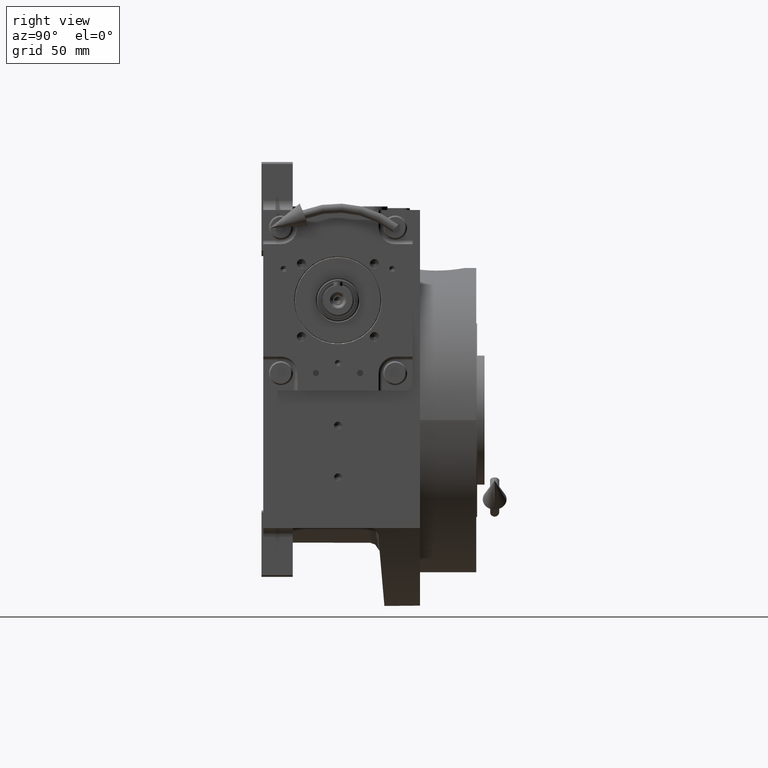
[diagram: clean part render]
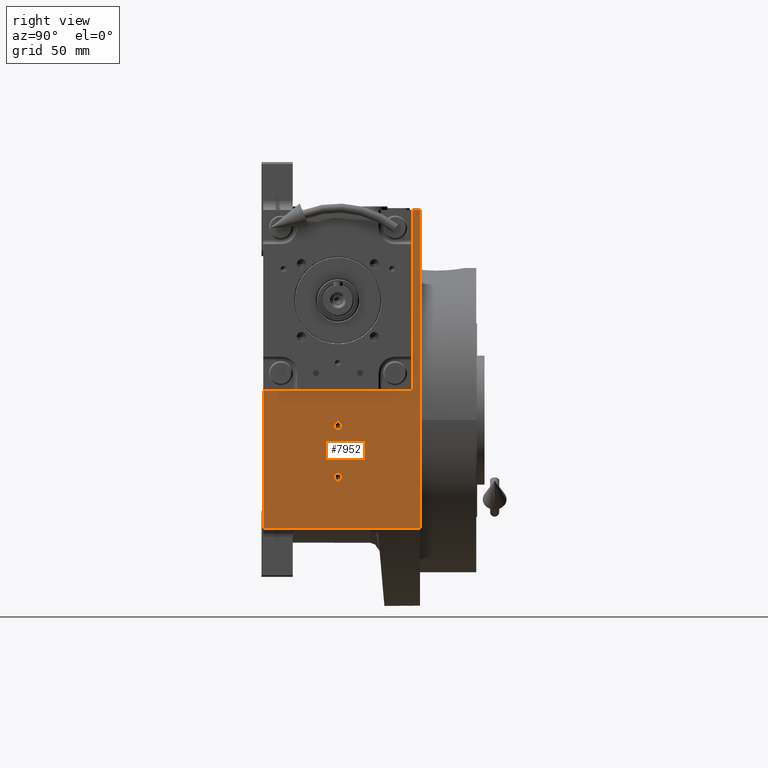
[diagram: same view with one face highlighted and labeled with its STEP entity id]
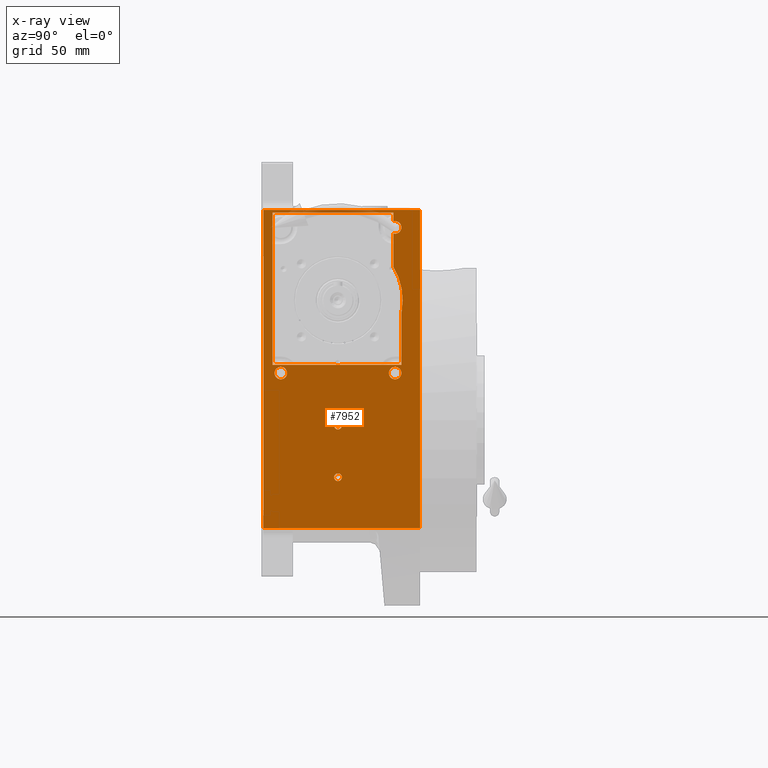
[diagram: x-ray of the same camera — body ghosted, the highlighted face saturated]
A machine part, right view. The second image highlights one B-rep face of the part: STEP entity #7952.
The next image is the same camera in x-ray: the body ghosted, the highlighted face saturated — about 1% of this face is hidden behind the body in this view.
In plain terms, the highlighted planar face has unit normal (1, 0, -0).
Its self-contained STEP definition (entity closure, byte-faithful):
#223 = CARTESIAN_POINT ( 'NONE',  ( 82.50000000000000000, 33.81974078154515695, 74.46453734952115155 ) ) ;
#349 = EDGE_CURVE ( 'NONE', #39101, #50903, #2196, .T. ) ;
#451 = VECTOR ( 'NONE', #51241, 1000.000000000000000 ) ;
#545 = CIRCLE ( 'NONE', #49064, 2.100000000000000089 ) ;
#550 = CARTESIAN_POINT ( 'NONE',  ( 82.50000000000001421, 30.82805572436245711, 81.84190272524516274 ) ) ;
#654 = B_SPLINE_CURVE_WITH_KNOTS ( 'NONE', 3,
 ( #19097, #58247, #39132, #19731 ),
 .UNSPECIFIED., .F., .F.,
 ( 4, 4 ),
 ( 0.4769929901098248770, 0.5000001611269361268 ),
 .UNSPECIFIED. ) ;
#1532 = VERTEX_POINT ( 'NONE', #7674 ) ;
#1597 = CARTESIAN_POINT ( 'NONE',  ( 82.50000025238179546, 16.91834884610074852, -58.49999999999619860 ) ) ;
#1786 = CARTESIAN_POINT ( 'NONE',  ( 82.50000000000000000, 29.99999999999985079, 112.4999999999999005 ) ) ;
#2168 = ORIENTED_EDGE ( 'NONE', *, *, #42943, .F. ) ;
#2196 = LINE ( 'NONE', #56786, #11076 ) ;
#2205 = DIRECTION ( 'NONE',  ( 0.000000000000000000, 1.000000000000000000, 0.000000000000000000 ) ) ;
#2494 = AXIS2_PLACEMENT_3D ( 'NONE', #43291, #57528, #63021 ) ;
#2920 = AXIS2_PLACEMENT_3D ( 'NONE', #21254, #37375, #22513 ) ;
#3673 = ORIENTED_EDGE ( 'NONE', *, *, #6486, .F. ) ;
#3834 = ORIENTED_EDGE ( 'NONE', *, *, #37333, .T. ) ;
#4205 = VERTEX_POINT ( 'NONE', #46553 ) ;
#4969 = VERTEX_POINT ( 'NONE', #45009 ) ;
#5706 = FACE_OUTER_BOUND ( 'NONE', #14596, .T. ) ;
#6036 = ORIENTED_EDGE ( 'NONE', *, *, #41169, .T. ) ;
#6316 = FACE_BOUND ( 'NONE', #9480, .T. ) ;
#6486 = EDGE_CURVE ( 'NONE', #59619, #8327, #26541, .T. ) ;
#6843 = CARTESIAN_POINT ( 'NONE',  ( 82.50000000000000000, 2.100000000000000089, -31.00000000000000000 ) ) ;
#6964 = DIRECTION ( 'NONE',  ( -1.647635329298784785E-16, 0.000000000000000000, -1.000000000000000000 ) ) ;
#7027 = CARTESIAN_POINT ( 'NONE',  ( 82.50000000000000000, -40.50000000000000000, -58.50000000000000000 ) ) ;
#7286 = CARTESIAN_POINT ( 'NONE',  ( 82.50000000000000000, 34.49999999999999289, 114.0000000000000000 ) ) ;
#7421 = AXIS2_PLACEMENT_3D ( 'NONE', #49929, #49278, #30510 ) ;
#7627 = ORIENTED_EDGE ( 'NONE', *, *, #13138, .T. ) ;
#7674 = CARTESIAN_POINT ( 'NONE',  ( 82.50000000000000000, 29.99999999995431565, 101.2503846381596730 ) ) ;
#7716 = AXIS2_PLACEMENT_3D ( 'NONE', #30725, #49828, #40119 ) ;
#7952 = ADVANCED_FACE ( 'NONE', ( #26029, #50921, #50588, #6316, #5706, #30546 ), #11813, .T. ) ;
#8327 = VERTEX_POINT ( 'NONE', #31668 ) ;
#9136 = ORIENTED_EDGE ( 'NONE', *, *, #24538, .F. ) ;
#9480 = EDGE_LOOP ( 'NONE', ( #38031, #18912 ) ) ;
#9586 = VERTEX_POINT ( 'NONE', #37774 ) ;
#9729 = ORIENTED_EDGE ( 'NONE', *, *, #36063, .T. ) ;
#10261 = CARTESIAN_POINT ( 'NONE',  ( 82.50000000000000000, 30.00000000000593303, 113.9999999997145892 ) ) ;
#10501 = ORIENTED_EDGE ( 'NONE', *, *, #38036, .T. ) ;
#10542 = CIRCLE ( 'NONE', #50776, 3.400000000000000355 ) ;
#10865 = EDGE_LOOP ( 'NONE', ( #39494, #3673 ) ) ;
#11076 = VECTOR ( 'NONE', #50660, 1000.000000000000000 ) ;
#11813 = PLANE ( 'NONE',  #23533 ) ;
#11840 = ORIENTED_EDGE ( 'NONE', *, *, #60786, .T. ) ;
#11956 = VECTOR ( 'NONE', #46591, 1000.000000000000000 ) ;
#11971 = CARTESIAN_POINT ( 'NONE',  ( 82.50000000000000000, 16.91835670641390266, -58.49999999999130296 ) ) ;
#12104 = ORIENTED_EDGE ( 'NONE', *, *, #31711, .T. ) ;
#12509 = LINE ( 'NONE', #7027, #38481 ) ;
#12594 = VECTOR ( 'NONE', #44128, 1000.000000000000000 ) ;
#12634 = DIRECTION ( 'NONE',  ( 0.000000000000000000, 1.000000000000000000, 0.000000000000000000 ) ) ;
#12961 = EDGE_CURVE ( 'NONE', #30381, #17399, #41741, .T. ) ;
#12971 = VERTEX_POINT ( 'NONE', #47220 ) ;
#13029 = DIRECTION ( 'NONE',  ( 0.000000000000000000, -1.000000000000000000, 0.000000000000000000 ) ) ;
#13138 = EDGE_CURVE ( 'NONE', #22714, #4205, #19397, .T. ) ;
#13212 = ORIENTED_EDGE ( 'NONE', *, *, #57116, .T. ) ;
#13265 = VERTEX_POINT ( 'NONE', #50093 ) ;
#13866 = CARTESIAN_POINT ( 'NONE',  ( 82.49999999999998579, 34.49999999999999289, 30.00000000000000000 ) ) ;
#14596 = EDGE_LOOP ( 'NONE', ( #20415, #2168, #44873, #11840, #3834 ) ) ;
#14885 = CARTESIAN_POINT ( 'NONE',  ( 82.50000000000000000, 34.49999998686116243, 58.58312853369196205 ) ) ;
#15152 = EDGE_CURVE ( 'NONE', #29018, #12971, #53481, .T. ) ;
#15264 = CARTESIAN_POINT ( 'NONE',  ( 82.50000000000001421, 2.414562605747844383E-09, 29.90816376169637891 ) ) ;
#15347 = ORIENTED_EDGE ( 'NONE', *, *, #58444, .T. ) ;
#15714 = CARTESIAN_POINT ( 'NONE',  ( 82.50000000000001421, 32.80572029892041996, 77.48516808457488025 ) ) ;
#15751 = EDGE_CURVE ( 'NONE', #17399, #55267, #654, .T. ) ;
#15914 = CARTESIAN_POINT ( 'NONE',  ( 82.49999999999998579, -1.693757624165966202, 29.93853691575077747 ) ) ;
#16031 = CARTESIAN_POINT ( 'NONE',  ( 82.50001592702780329, 35.09186693526755363, 65.00000042374568920 ) ) ;
#16519 = CARTESIAN_POINT ( 'NONE',  ( 82.50000000000000000, -40.50000000000000000, 114.0000000000000000 ) ) ;
#16654 = DIRECTION ( 'NONE',  ( -1.647635329298784785E-16, 0.000000000000000000, -1.000000000000000000 ) ) ;
#17183 = CARTESIAN_POINT ( 'NONE',  ( 82.49999999999998579, -40.49999999999999289, 29.99999999999998579 ) ) ;
#17399 = VERTEX_POINT ( 'NONE', #60140 ) ;
#17558 = EDGE_LOOP ( 'NONE', ( #51661, #49151 ) ) ;
#17612 = CARTESIAN_POINT ( 'NONE',  ( 82.50000000000000000, -40.50000000000000000, 112.4999999999999005 ) ) ;
#18162 = CARTESIAN_POINT ( 'NONE',  ( 82.50000000000000000, 44.50000000000000000, -58.50000000000000000 ) ) ;
#18912 = ORIENTED_EDGE ( 'NONE', *, *, #33085, .F. ) ;
#19097 = CARTESIAN_POINT ( 'NONE',  ( 82.50000000000000000, 2.536110083989804753, 29.99974484571772138 ) ) ;
#19397 = B_SPLINE_CURVE_WITH_KNOTS ( 'NONE', 3,
 ( #40394, #20676, #44608, #14885 ),
 .UNSPECIFIED., .F., .F.,
 ( 4, 4 ),
 ( 0.000000000000000000, 0.05853918765828202558 ),
 .UNSPECIFIED. ) ;
#19731 = CARTESIAN_POINT ( 'NONE',  ( 82.50000000000001421, 2.414562605747844383E-09, 29.90816376169637891 ) ) ;
#19919 = CARTESIAN_POINT ( 'NONE',  ( 82.49999999999997158, 34.95339362933337668, 68.60173905830357910 ) ) ;
#20069 = VECTOR ( 'NONE', #39634, 1000.000000000000000 ) ;
#20324 = VERTEX_POINT ( 'NONE', #18162 ) ;
#20415 = ORIENTED_EDGE ( 'NONE', *, *, #33368, .F. ) ;
#20676 = CARTESIAN_POINT ( 'NONE',  ( 82.49999999999998579, 35.08908208338716861, 62.82792700497097371 ) ) ;
#21254 = CARTESIAN_POINT ( 'NONE',  ( 82.50000000000000000, 2.220446049250315053E-16, -31.00000000000000000 ) ) ;
#22187 = CARTESIAN_POINT ( 'NONE',  ( 82.50001592702780329, 35.09186693526755363, 65.00000042374568920 ) ) ;
#22513 = DIRECTION ( 'NONE',  ( 0.000000000000000000, 1.000000000000000000, 0.000000000000000000 ) ) ;
#22714 = VERTEX_POINT ( 'NONE', #22187 ) ;
#22863 = CIRCLE ( 'NONE', #41403, 3.400000000000000355 ) ;
#23298 = DIRECTION ( 'NONE',  ( -1.647635329298784785E-16, 0.000000000000000000, -1.000000000000000000 ) ) ;
#23321 = CARTESIAN_POINT ( 'NONE',  ( 82.50000000000000000, 34.39999999999999858, 104.5000000000000000 ) ) ;
#23533 = AXIS2_PLACEMENT_3D ( 'NONE', #50271, #30235, #16654 ) ;
#24089 = VERTEX_POINT ( 'NONE', #33465 ) ;
#24412 = CARTESIAN_POINT ( 'NONE',  ( 82.50000000000000000, 30.00000000000593303, 113.9999999997145892 ) ) ;
#24538 = EDGE_CURVE ( 'NONE', #1532, #48304, #10542, .T. ) ;
#25095 = LINE ( 'NONE', #29611, #20069 ) ;
#25314 = DIRECTION ( 'NONE',  ( 1.000000000000000000, 0.000000000000000000, 0.000000000000000000 ) ) ;
#25376 = EDGE_LOOP ( 'NONE', ( #29108, #35453 ) ) ;
#25687 = VERTEX_POINT ( 'NONE', #44772 ) ;
#25823 = DIRECTION ( 'NONE',  ( 1.000000000000000000, 0.000000000000000000, 0.000000000000000000 ) ) ;
#26029 = FACE_BOUND ( 'NONE', #17558, .T. ) ;
#26409 = DIRECTION ( 'NONE',  ( 1.000000000000000000, 0.000000000000000000, 0.000000000000000000 ) ) ;
#26445 = DIRECTION ( 'NONE',  ( 0.000000000000000000, 1.000000000000000000, 8.260587980841937794E-16 ) ) ;
#26541 = CIRCLE ( 'NONE', #34792, 2.100000000000000089 ) ;
#26754 = DIRECTION ( 'NONE',  ( 1.000000000000000000, 0.000000000000000000, 0.000000000000000000 ) ) ;
#26946 = CARTESIAN_POINT ( 'NONE',  ( 82.50000000000000000, 31.00000000000000000, 104.5000000000000000 ) ) ;
#27185 = CARTESIAN_POINT ( 'NONE',  ( 82.50000000000000000, -40.50000000000000000, 114.0000000000000000 ) ) ;
#27227 = VECTOR ( 'NONE', #12634, 1000.000000000000000 ) ;
#27426 = VERTEX_POINT ( 'NONE', #1597 ) ;
#27637 = EDGE_CURVE ( 'NONE', #8327, #59619, #545, .T. ) ;
#27709 = CARTESIAN_POINT ( 'NONE',  ( 82.50000000000000000, 0.000000000000000000, -3.000000000000000000 ) ) ;
#28077 = CIRCLE ( 'NONE', #52822, 3.400000000000000355 ) ;
#28329 = CIRCLE ( 'NONE', #7716, 3.400000000000000355 ) ;
#28470 = CARTESIAN_POINT ( 'NONE',  ( 82.50000000000000000, 44.50000000000000000, 114.0000000000000000 ) ) ;
#29018 = VERTEX_POINT ( 'NONE', #6843 ) ;
#29108 = ORIENTED_EDGE ( 'NONE', *, *, #39004, .F. ) ;
#29611 = CARTESIAN_POINT ( 'NONE',  ( 82.50000000000000000, -40.50000000000000000, 114.0000000000000000 ) ) ;
#30235 = DIRECTION ( 'NONE',  ( 1.000000000000000000, 0.000000000000000000, -1.647635329298784785E-16 ) ) ;
#30244 = CARTESIAN_POINT ( 'NONE',  ( 82.50000000000000000, 32.51283170918762977, 78.22893766805258053 ) ) ;
#30381 = VERTEX_POINT ( 'NONE', #53730 ) ;
#30510 = DIRECTION ( 'NONE',  ( 0.000000000000000000, -1.000000000000000000, 0.000000000000000000 ) ) ;
#30546 = FACE_BOUND ( 'NONE', #50249, .T. ) ;
#30555 = CARTESIAN_POINT ( 'NONE',  ( 82.50000000000001421, 33.33865609199173718, 75.98322085332500819 ) ) ;
#30663 = VERTEX_POINT ( 'NONE', #16519 ) ;
#30725 = CARTESIAN_POINT ( 'NONE',  ( 82.50000000000000000, -31.00000000000000000, 25.50000000000000000 ) ) ;
#30919 = DIRECTION ( 'NONE',  ( 0.000000000000000000, 1.000000000000000000, 4.081702296416015997E-15 ) ) ;
#31515 = LINE ( 'NONE', #7286, #54993 ) ;
#31629 = B_SPLINE_CURVE_WITH_KNOTS ( 'NONE', 3,
 ( #15264, #50805, #15914, #35613 ),
 .UNSPECIFIED., .F., .F.,
 ( 4, 4 ),
 ( 0.5000001611269361268, 0.5230119329669968842 ),
 .UNSPECIFIED. ) ;
#31662 = DIRECTION ( 'NONE',  ( 0.000000000000000000, 1.000000000000000000, -3.142895179957984790E-13 ) ) ;
#31668 = CARTESIAN_POINT ( 'NONE',  ( 82.50000000000000000, 2.100000000000000089, -3.000000000000000000 ) ) ;
#31711 = EDGE_CURVE ( 'NONE', #55267, #53502, #31629, .T. ) ;
#31922 = DIRECTION ( 'NONE',  ( 0.000000000000000000, 1.000000000000000000, -2.040851148208007998E-15 ) ) ;
#32732 = DIRECTION ( 'NONE',  ( 1.000000000000000000, 0.000000000000000000, 0.000000000000000000 ) ) ;
#33085 = EDGE_CURVE ( 'NONE', #55805, #13265, #53895, .T. ) ;
#33144 = EDGE_CURVE ( 'NONE', #13265, #55805, #28077, .T. ) ;
#33368 = EDGE_CURVE ( 'NONE', #42120, #20324, #38797, .T. ) ;
#33465 = CARTESIAN_POINT ( 'NONE',  ( 82.49999999999998579, 30.00000000960658042, 83.20547276137477866 ) ) ;
#33646 = CARTESIAN_POINT ( 'NONE',  ( 82.50000000000001421, 2.414562605747844383E-09, 29.90816376169637891 ) ) ;
#34370 = CARTESIAN_POINT ( 'NONE',  ( 82.50000000000000000, 0.000000000000000000, -3.000000000000000000 ) ) ;
#34437 = CIRCLE ( 'NONE', #2494, 2.100000000000000089 ) ;
#34456 = CARTESIAN_POINT ( 'NONE',  ( 82.50000000000000000, -40.50000000000000000, -58.50000000000000000 ) ) ;
#34469 = CARTESIAN_POINT ( 'NONE',  ( 82.49999999999997158, 34.51518828127864680, 71.34633111491422142 ) ) ;
#34792 = AXIS2_PLACEMENT_3D ( 'NONE', #34370, #25314, #40491 ) ;
#35134 = LINE ( 'NONE', #10261, #57846 ) ;
#35453 = ORIENTED_EDGE ( 'NONE', *, *, #62858, .F. ) ;
#35613 = CARTESIAN_POINT ( 'NONE',  ( 82.50000000000000000, -2.536110689832524745, 29.99973653616786606 ) ) ;
#35912 = LINE ( 'NONE', #27185, #27227 ) ;
#36063 = EDGE_CURVE ( 'NONE', #53502, #39101, #63324, .T. ) ;
#36078 = DIRECTION ( 'NONE',  ( -1.647635329298784785E-16, -4.048429820936533247E-12, -1.000000000000000000 ) ) ;
#36147 = CARTESIAN_POINT ( 'NONE',  ( 82.50000000000000000, -31.00000000000000000, 25.50000000000000000 ) ) ;
#36741 = CARTESIAN_POINT ( 'NONE',  ( 82.50000000000000000, 31.00000000000000000, 104.5000000000000000 ) ) ;
#37333 = EDGE_CURVE ( 'NONE', #27426, #20324, #56267, .T. ) ;
#37375 = DIRECTION ( 'NONE',  ( 1.000000000000000000, 0.000000000000000000, 0.000000000000000000 ) ) ;
#37774 = CARTESIAN_POINT ( 'NONE',  ( 82.50000000000000000, 29.99999999998061995, 107.7496153618484129 ) ) ;
#38031 = ORIENTED_EDGE ( 'NONE', *, *, #33144, .F. ) ;
#38036 = EDGE_CURVE ( 'NONE', #24089, #22714, #39044, .T. ) ;
#38481 = VECTOR ( 'NONE', #2205, 1000.000000000000000 ) ;
#38640 = LINE ( 'NONE', #24412, #12594 ) ;
#38797 = LINE ( 'NONE', #43660, #39493 ) ;
#38803 = CARTESIAN_POINT ( 'NONE',  ( 82.50000000000000000, -2.536110689832524745, 29.99973653616786606 ) ) ;
#39004 = EDGE_CURVE ( 'NONE', #4969, #25687, #54874, .T. ) ;
#39044 = B_SPLINE_CURVE_WITH_KNOTS ( 'NONE', 3,
 ( #39638, #550, #60310, #30244, #15714, #30555, #223, #39953, #50282, #34469, #59673, #19919, #39316, #16031 ),
 .UNSPECIFIED., .F., .F.,
 ( 4, 2, 2, 1, 2, 2, 1, 4 ),
 ( 0.8263553266775865991, 0.8697664950081898105, 0.8914720791734912497, 0.9131776633387927999, 0.9348832475040943502, 0.9457360395867453473, 0.9565888316693962334, 1.000000000000000000 ),
 .UNSPECIFIED. ) ;
#39101 = VERTEX_POINT ( 'NONE', #42914 ) ;
#39132 = CARTESIAN_POINT ( 'NONE',  ( 82.49999999999998579, 0.8482114151010448078, 29.90810332843309993 ) ) ;
#39316 = CARTESIAN_POINT ( 'NONE',  ( 82.49999999999997158, 35.08975786824625231, 66.61097725807486825 ) ) ;
#39493 = VECTOR ( 'NONE', #23298, 1000.000000000000000 ) ;
#39494 = ORIENTED_EDGE ( 'NONE', *, *, #27637, .F. ) ;
#39634 = DIRECTION ( 'NONE',  ( -1.647635329298784785E-16, 0.000000000000000000, -1.000000000000000000 ) ) ;
#39638 = CARTESIAN_POINT ( 'NONE',  ( 82.49999999999998579, 30.00000000960658042, 83.20547276137477866 ) ) ;
#39953 = CARTESIAN_POINT ( 'NONE',  ( 82.50000000000001421, 34.19712326406279601, 72.91238130060928313 ) ) ;
#40119 = DIRECTION ( 'NONE',  ( 0.000000000000000000, -1.000000000000000000, 2.040851148208007998E-15 ) ) ;
#40188 = ORIENTED_EDGE ( 'NONE', *, *, #52593, .T. ) ;
#40394 = CARTESIAN_POINT ( 'NONE',  ( 82.50001592702780329, 35.09186693526755363, 65.00000042374568920 ) ) ;
#40491 = DIRECTION ( 'NONE',  ( 0.000000000000000000, -1.000000000000000000, -8.260587980841937794E-16 ) ) ;
#41169 = EDGE_CURVE ( 'NONE', #54466, #9586, #38640, .T. ) ;
#41403 = AXIS2_PLACEMENT_3D ( 'NONE', #36741, #26409, #30919 ) ;
#41431 = AXIS2_PLACEMENT_3D ( 'NONE', #36147, #25823, #31922 ) ;
#41741 = LINE ( 'NONE', #17183, #11956 ) ;
#42120 = VERTEX_POINT ( 'NONE', #28470 ) ;
#42914 = CARTESIAN_POINT ( 'NONE',  ( 82.49999999999998579, -35.50000000000001421, 29.99999999999999289 ) ) ;
#42943 = EDGE_CURVE ( 'NONE', #30663, #42120, #35912, .T. ) ;
#43291 = CARTESIAN_POINT ( 'NONE',  ( 82.50000000000000000, 0.000000000000000000, -31.00000000000000000 ) ) ;
#43660 = CARTESIAN_POINT ( 'NONE',  ( 82.50000000000000000, 44.50000000000000000, 114.0000000000000000 ) ) ;
#43958 = CARTESIAN_POINT ( 'NONE',  ( 82.50000000000000000, -2.100000000000000089, -3.000000000000000000 ) ) ;
#44128 = DIRECTION ( 'NONE',  ( -1.647635329298784785E-16, -4.048429820936533247E-12, -1.000000000000000000 ) ) ;
#44207 = EDGE_CURVE ( 'NONE', #30663, #59778, #25095, .T. ) ;
#44608 = CARTESIAN_POINT ( 'NONE',  ( 82.49999999999998579, 34.89175272516990844, 60.68897464567918831 ) ) ;
#44772 = CARTESIAN_POINT ( 'NONE',  ( 82.50000000000000000, -34.39999999999999858, 25.50000000000000000 ) ) ;
#44873 = ORIENTED_EDGE ( 'NONE', *, *, #44207, .T. ) ;
#45009 = CARTESIAN_POINT ( 'NONE',  ( 82.50000000000000000, -27.59999999999999787, 25.50000000000000000 ) ) ;
#45075 = CARTESIAN_POINT ( 'NONE',  ( 82.50000000000000000, 31.00000000000000000, 25.50000000000000000 ) ) ;
#46553 = CARTESIAN_POINT ( 'NONE',  ( 82.50000000000000000, 34.49999998686116243, 58.58312853369196205 ) ) ;
#46591 = DIRECTION ( 'NONE',  ( -1.633252391761930827E-32, -1.000000000000000000, -9.912705577010326782E-17 ) ) ;
#47220 = CARTESIAN_POINT ( 'NONE',  ( 82.50000000000000000, -2.100000000000000089, -31.00000000000000000 ) ) ;
#48304 = VERTEX_POINT ( 'NONE', #23321 ) ;
#49064 = AXIS2_PLACEMENT_3D ( 'NONE', #27709, #26754, #26445 ) ;
#49151 = ORIENTED_EDGE ( 'NONE', *, *, #58171, .F. ) ;
#49278 = DIRECTION ( 'NONE',  ( 1.000000000000000000, 0.000000000000000000, 0.000000000000000000 ) ) ;
#49828 = DIRECTION ( 'NONE',  ( 1.000000000000000000, 0.000000000000000000, 0.000000000000000000 ) ) ;
#49929 = CARTESIAN_POINT ( 'NONE',  ( 82.50000000000000000, 31.00000000000000000, 25.50000000000000000 ) ) ;
#50093 = CARTESIAN_POINT ( 'NONE',  ( 82.50000000000000000, 34.39999999999999858, 25.50000000000000000 ) ) ;
#50249 = EDGE_LOOP ( 'NONE', ( #9136, #40188, #10501, #7627, #13212, #58028, #60114, #12104, #9729, #60047, #15347, #6036, #62566 ) ) ;
#50271 = CARTESIAN_POINT ( 'NONE',  ( 82.50000000000000000, -40.50000000000000000, 114.0000000000000000 ) ) ;
#50282 = CARTESIAN_POINT ( 'NONE',  ( 82.49999999999998579, 34.44127179831260577, 71.73571205950983654 ) ) ;
#50588 = FACE_BOUND ( 'NONE', #25376, .T. ) ;
#50660 = DIRECTION ( 'NONE',  ( 1.647635329298784785E-16, 0.000000000000000000, 1.000000000000000000 ) ) ;
#50776 = AXIS2_PLACEMENT_3D ( 'NONE', #26946, #32732, #13029 ) ;
#50805 = CARTESIAN_POINT ( 'NONE',  ( 82.49999999999998579, -0.8483810300191864107, 29.90807573436788758 ) ) ;
#50903 = VERTEX_POINT ( 'NONE', #51888 ) ;
#50921 = FACE_BOUND ( 'NONE', #10865, .T. ) ;
#50939 = LINE ( 'NONE', #17612, #451 ) ;
#51220 = CARTESIAN_POINT ( 'NONE',  ( 82.50000000000000000, 27.59999999999999787, 25.50000000000000000 ) ) ;
#51241 = DIRECTION ( 'NONE',  ( 0.000000000000000000, 1.000000000000000000, 0.000000000000000000 ) ) ;
#51661 = ORIENTED_EDGE ( 'NONE', *, *, #15152, .F. ) ;
#51888 = CARTESIAN_POINT ( 'NONE',  ( 82.49999999999998579, -35.50000000000001421, 112.4999999999999005 ) ) ;
#52384 = DIRECTION ( 'NONE',  ( 0.000000000000000000, 1.000000000000000000, 0.000000000000000000 ) ) ;
#52593 = EDGE_CURVE ( 'NONE', #1532, #24089, #35134, .T. ) ;
#52636 = DIRECTION ( 'NONE',  ( 0.000000000000000000, -1.000000000000000000, -9.912705577010326782E-17 ) ) ;
#52822 = AXIS2_PLACEMENT_3D ( 'NONE', #45075, #62416, #52384 ) ;
#53481 = CIRCLE ( 'NONE', #2920, 2.100000000000000089 ) ;
#53502 = VERTEX_POINT ( 'NONE', #38803 ) ;
#53730 = CARTESIAN_POINT ( 'NONE',  ( 82.49999999999998579, 34.49999999999999289, 30.00000000000000000 ) ) ;
#53861 = VECTOR ( 'NONE', #31662, 1000.000000000000000 ) ;
#53895 = CIRCLE ( 'NONE', #7421, 3.400000000000000355 ) ;
#54466 = VERTEX_POINT ( 'NONE', #1786 ) ;
#54727 = VECTOR ( 'NONE', #52636, 1000.000000000000000 ) ;
#54874 = CIRCLE ( 'NONE', #41431, 3.400000000000000355 ) ;
#54993 = VECTOR ( 'NONE', #6964, 1000.000000000000000 ) ;
#55267 = VERTEX_POINT ( 'NONE', #33646 ) ;
#55359 = EDGE_CURVE ( 'NONE', #48304, #9586, #22863, .T. ) ;
#55805 = VERTEX_POINT ( 'NONE', #51220 ) ;
#56267 = LINE ( 'NONE', #11971, #53861 ) ;
#56786 = CARTESIAN_POINT ( 'NONE',  ( 82.50000000000000000, -35.50000000000001421, 114.0000000000000000 ) ) ;
#57116 = EDGE_CURVE ( 'NONE', #4205, #30381, #31515, .T. ) ;
#57528 = DIRECTION ( 'NONE',  ( 1.000000000000000000, 0.000000000000000000, 0.000000000000000000 ) ) ;
#57846 = VECTOR ( 'NONE', #36078, 1000.000000000000000 ) ;
#58028 = ORIENTED_EDGE ( 'NONE', *, *, #12961, .T. ) ;
#58171 = EDGE_CURVE ( 'NONE', #12971, #29018, #34437, .T. ) ;
#58247 = CARTESIAN_POINT ( 'NONE',  ( 82.49999999999998579, 1.693853510454309763, 29.93857005420085216 ) ) ;
#58444 = EDGE_CURVE ( 'NONE', #50903, #54466, #50939, .T. ) ;
#59619 = VERTEX_POINT ( 'NONE', #43958 ) ;
#59673 = CARTESIAN_POINT ( 'NONE',  ( 82.49999999999998579, 34.64993789476057628, 70.56380189656638890 ) ) ;
#59778 = VERTEX_POINT ( 'NONE', #34456 ) ;
#60047 = ORIENTED_EDGE ( 'NONE', *, *, #349, .T. ) ;
#60114 = ORIENTED_EDGE ( 'NONE', *, *, #15751, .T. ) ;
#60140 = CARTESIAN_POINT ( 'NONE',  ( 82.50000000000000000, 2.536110083989804753, 29.99974484571772138 ) ) ;
#60310 = CARTESIAN_POINT ( 'NONE',  ( 82.50000000000000000, 31.55973645480924361, 80.42730196816596333 ) ) ;
#60786 = EDGE_CURVE ( 'NONE', #59778, #27426, #12509, .T. ) ;
#62416 = DIRECTION ( 'NONE',  ( 1.000000000000000000, 0.000000000000000000, 0.000000000000000000 ) ) ;
#62566 = ORIENTED_EDGE ( 'NONE', *, *, #55359, .F. ) ;
#62858 = EDGE_CURVE ( 'NONE', #25687, #4969, #28329, .T. ) ;
#63021 = DIRECTION ( 'NONE',  ( 0.000000000000000000, -1.000000000000000000, 0.000000000000000000 ) ) ;
#63324 = LINE ( 'NONE', #13866, #54727 ) ;